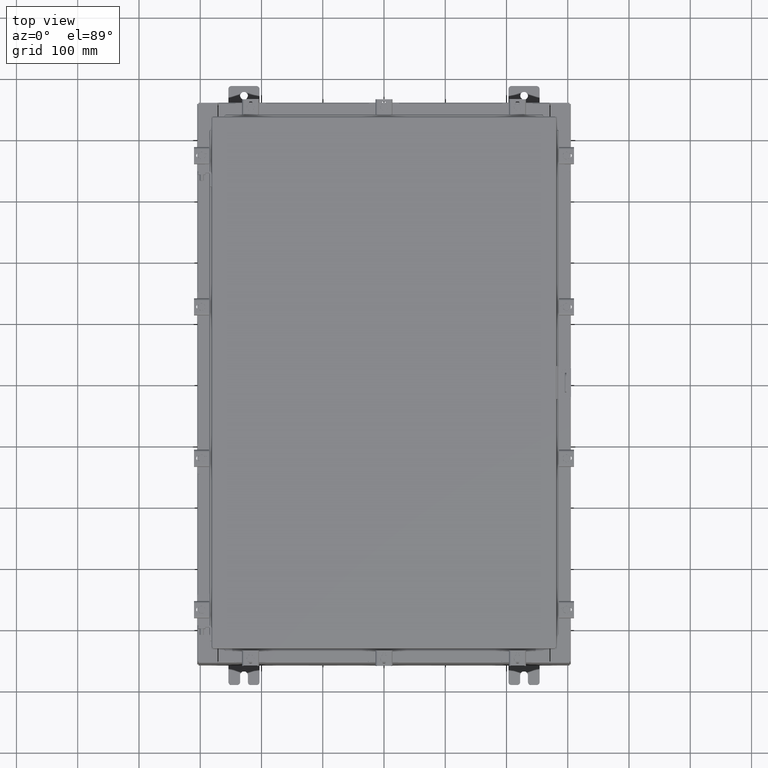
[diagram: clean part render]
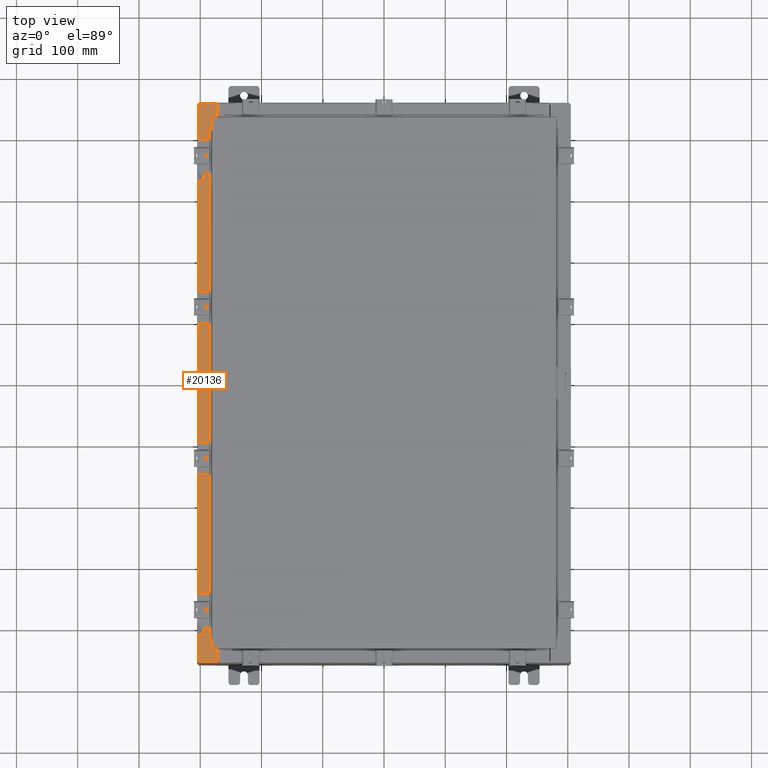
[diagram: same view with one face highlighted and labeled with its STEP entity id]
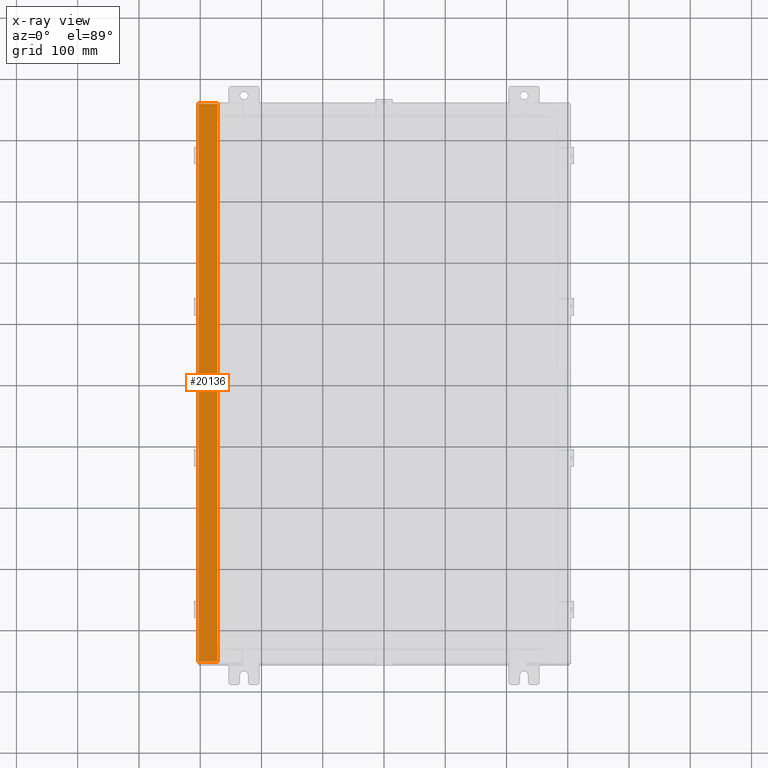
[diagram: x-ray of the same camera — body ghosted, the highlighted face saturated]
A machine part, top view. The second image highlights one B-rep face of the part: STEP entity #20136.
The next image is the same camera in x-ray: the body ghosted, the highlighted face saturated — about 0% of this face is hidden behind the body in this view.
In plain terms, the highlighted planar face has unit normal (0, 0, -1).
Its self-contained STEP definition (entity closure, byte-faithful):
#74 = EDGE_CURVE ( 'NONE', #7706, #15444, #13400, .T. ) ;
#233 = AXIS2_PLACEMENT_3D ( 'NONE', #6294, #18950, #8116 ) ;
#249 = VECTOR ( 'NONE', #12723, 39.37007874015748100 ) ;
#521 = EDGE_CURVE ( 'NONE', #19828, #7706, #11974, .T. ) ;
#874 = VECTOR ( 'NONE', #1730, 39.37007874015748100 ) ;
#908 = CARTESIAN_POINT ( 'NONE',  ( -10.69970000000003700, -16.63109999999998900, 9.925300000000007100 ) ) ;
#1245 = ORIENTED_EDGE ( 'NONE', *, *, #11201, .T. ) ;
#1417 = LINE ( 'NONE', #11437, #5676 ) ;
#1730 = DIRECTION ( 'NONE',  ( 1.000000000000000000, -4.340572780399910900E-014, 0.0000000000000000000 ) ) ;
#1740 = CARTESIAN_POINT ( 'NONE',  ( -10.69970000000003700, 17.92529999999999600, 9.925300000000007100 ) ) ;
#1841 = LINE ( 'NONE', #8664, #15724 ) ;
#2166 = ORIENTED_EDGE ( 'NONE', *, *, #9077, .F. ) ;
#2169 = EDGE_CURVE ( 'NONE', #3874, #5414, #6849, .T. ) ;
#2213 = ORIENTED_EDGE ( 'NONE', *, *, #521, .F. ) ;
#2250 = ORIENTED_EDGE ( 'NONE', *, *, #17126, .F. ) ;
#2340 = DIRECTION ( 'NONE',  ( -4.276128853718621600E-031, 1.000000000000000000, -3.050061104355376000E-045 ) ) ;
#3731 = CARTESIAN_POINT ( 'NONE',  ( -11.91230000000003600, -17.92530000000000400, 9.925299999999998200 ) ) ;
#3874 = VERTEX_POINT ( 'NONE', #15579 ) ;
#4492 = VERTEX_POINT ( 'NONE', #7373 ) ;
#4605 = VERTEX_POINT ( 'NONE', #7596 ) ;
#4689 = DIRECTION ( 'NONE',  ( 7.132762385546384700E-015, 0.0000000000000000000, -1.000000000000000000 ) ) ;
#4799 = CARTESIAN_POINT ( 'NONE',  ( -10.75005000000003700, -16.61242499999999100, 9.925300000000007100 ) ) ;
#4866 = ORIENTED_EDGE ( 'NONE', *, *, #2169, .F. ) ;
#5065 = ORIENTED_EDGE ( 'NONE', *, *, #13875, .T. ) ;
#5414 = VERTEX_POINT ( 'NONE', #19512 ) ;
#5672 = LINE ( 'NONE', #10824, #874 ) ;
#5676 = VECTOR ( 'NONE', #2340, 39.37007874015748100 ) ;
#6096 = AXIS2_PLACEMENT_3D ( 'NONE', #15536, #4689, #17345 ) ;
#6267 = EDGE_CURVE ( 'NONE', #15444, #15805, #5672, .T. ) ;
#6294 = CARTESIAN_POINT ( 'NONE',  ( -10.75005000000003700, 16.61242499999999800, 9.925300000000007100 ) ) ;
#6849 = CIRCLE ( 'NONE', #233, 0.01867499999999949400 ) ;
#7121 = DIRECTION ( 'NONE',  ( 1.000000000000000000, -8.758115402030108600E-047, 7.132762385546384700E-015 ) ) ;
#7327 = EDGE_CURVE ( 'NONE', #5414, #21049, #14106, .T. ) ;
#7373 = CARTESIAN_POINT ( 'NONE',  ( -11.91230000000003600, 17.92529999999999600, 9.925299999999998200 ) ) ;
#7596 = CARTESIAN_POINT ( 'NONE',  ( -10.69970000000003700, 16.63110000000000000, 9.925300000000007100 ) ) ;
#7706 = VERTEX_POINT ( 'NONE', #18865 ) ;
#8116 = DIRECTION ( 'NONE',  ( 1.000000000000000000, 0.0000000000000000000, 0.0000000000000000000 ) ) ;
#8333 = LINE ( 'NONE', #13423, #22186 ) ;
#8416 = VECTOR ( 'NONE', #8458, 39.37007874015748100 ) ;
#8458 = DIRECTION ( 'NONE',  ( -0.0000000000000000000, 1.000000000000000000, -0.0000000000000000000 ) ) ;
#8497 = CARTESIAN_POINT ( 'NONE',  ( -10.71270000000003900, 16.59374999999999600, 9.925300000000007100 ) ) ;
#8664 = CARTESIAN_POINT ( 'NONE',  ( -10.69970000000003700, 16.63110000000000000, 9.925300000000007100 ) ) ;
#9077 = EDGE_CURVE ( 'NONE', #19896, #4492, #22826, .T. ) ;
#9487 = ORIENTED_EDGE ( 'NONE', *, *, #74, .F. ) ;
#10163 = EDGE_CURVE ( 'NONE', #19896, #10785, #21647, .T. ) ;
#10473 = DIRECTION ( 'NONE',  ( -1.000000000000000000, -4.340572780399910900E-014, 0.0000000000000000000 ) ) ;
#10785 = VERTEX_POINT ( 'NONE', #19590 ) ;
#10824 = CARTESIAN_POINT ( 'NONE',  ( -10.75005000000003700, -16.63109999999998900, 9.925300000000007100 ) ) ;
#10952 = DIRECTION ( 'NONE',  ( -1.000000000000000000, -1.087045829762336900E-031, -7.132762385546384700E-015 ) ) ;
#10965 = DIRECTION ( 'NONE',  ( 1.000000000000000000, 0.0000000000000000000, 0.0000000000000000000 ) ) ;
#11201 = EDGE_CURVE ( 'NONE', #4605, #16146, #8333, .T. ) ;
#11413 = EDGE_CURVE ( 'NONE', #21049, #19828, #23005, .T. ) ;
#11437 = CARTESIAN_POINT ( 'NONE',  ( -10.69970000000003700, -4.575329589613298800E-030, 9.925300000000007100 ) ) ;
#11721 = VECTOR ( 'NONE', #10952, 39.37007874015748100 ) ;
#11974 = LINE ( 'NONE', #17729, #20986 ) ;
#12068 = VECTOR ( 'NONE', #7121, 39.37007874015748100 ) ;
#12723 = DIRECTION ( 'NONE',  ( 1.000000000000000000, 0.0000000000000000000, 0.0000000000000000000 ) ) ;
#13400 = CIRCLE ( 'NONE', #15967, 0.01867499999999949400 ) ;
#13423 = CARTESIAN_POINT ( 'NONE',  ( -10.69970000000003700, -4.575329589613298800E-030, 9.925300000000007100 ) ) ;
#13688 = EDGE_LOOP ( 'NONE', ( #2250, #1245, #22781, #2166, #18184, #5065, #21071, #9487, #2213, #16443, #18733, #4866 ) ) ;
#13712 = PLANE ( 'NONE',  #6096 ) ;
#13875 = EDGE_CURVE ( 'NONE', #10785, #15805, #1417, .T. ) ;
#13956 = DIRECTION ( 'NONE',  ( -0.0000000000000000000, -1.000000000000000000, -0.0000000000000000000 ) ) ;
#14106 = LINE ( 'NONE', #18096, #249 ) ;
#14351 = CARTESIAN_POINT ( 'NONE',  ( -10.75005000000003700, -16.63109999999998900, 9.925300000000007100 ) ) ;
#14605 = CARTESIAN_POINT ( 'NONE',  ( -7.105562016127570400E-014, 17.92529999999999600, 9.925300000000083500 ) ) ;
#15336 = FACE_OUTER_BOUND ( 'NONE', #13688, .T. ) ;
#15444 = VERTEX_POINT ( 'NONE', #14351 ) ;
#15536 = CARTESIAN_POINT ( 'NONE',  ( -7.105562016127570400E-014, 0.0000000000000000000, 9.925300000000083500 ) ) ;
#15579 = CARTESIAN_POINT ( 'NONE',  ( -10.75005000000003700, 16.63110000000000000, 9.925300000000007100 ) ) ;
#15724 = VECTOR ( 'NONE', #10473, 39.37007874015748100 ) ;
#15805 = VERTEX_POINT ( 'NONE', #908 ) ;
#15967 = AXIS2_PLACEMENT_3D ( 'NONE', #4799, #17226, #10965 ) ;
#16092 = CARTESIAN_POINT ( 'NONE',  ( -10.71270000000003900, -16.59374999999998900, 9.925300000000007100 ) ) ;
#16146 = VERTEX_POINT ( 'NONE', #1740 ) ;
#16443 = ORIENTED_EDGE ( 'NONE', *, *, #11413, .F. ) ;
#17066 = DIRECTION ( 'NONE',  ( -4.276128853718621600E-031, 1.000000000000000000, -3.050061104355376000E-045 ) ) ;
#17126 = EDGE_CURVE ( 'NONE', #4605, #3874, #1841, .T. ) ;
#17226 = DIRECTION ( 'NONE',  ( -7.132762385546384700E-015, -0.0000000000000000000, 1.000000000000000000 ) ) ;
#17345 = DIRECTION ( 'NONE',  ( -1.000000000000000000, 0.0000000000000000000, -7.132762385546384700E-015 ) ) ;
#17729 = CARTESIAN_POINT ( 'NONE',  ( -10.71270000000003900, -16.59374999999998900, 9.925300000000007100 ) ) ;
#17974 = CARTESIAN_POINT ( 'NONE',  ( -7.105562016127570400E-014, -17.92530000000000400, 9.925300000000083500 ) ) ;
#18096 = CARTESIAN_POINT ( 'NONE',  ( -10.75005000000003700, 16.59375000000000000, 9.925300000000007100 ) ) ;
#18184 = ORIENTED_EDGE ( 'NONE', *, *, #10163, .T. ) ;
#18241 = VECTOR ( 'NONE', #13956, 39.37007874015748100 ) ;
#18733 = ORIENTED_EDGE ( 'NONE', *, *, #7327, .F. ) ;
#18865 = CARTESIAN_POINT ( 'NONE',  ( -10.75005000000003700, -16.59374999999998900, 9.925300000000007100 ) ) ;
#18950 = DIRECTION ( 'NONE',  ( -7.132762385546384700E-015, -0.0000000000000000000, 1.000000000000000000 ) ) ;
#19512 = CARTESIAN_POINT ( 'NONE',  ( -10.75005000000003700, 16.59375000000000000, 9.925300000000007100 ) ) ;
#19590 = CARTESIAN_POINT ( 'NONE',  ( -10.69970000000003700, -17.92530000000000400, 9.925300000000007100 ) ) ;
#19828 = VERTEX_POINT ( 'NONE', #16092 ) ;
#19896 = VERTEX_POINT ( 'NONE', #3731 ) ;
#20136 = ADVANCED_FACE ( 'NONE', ( #15336 ), #13712, .F. ) ;
#20986 = VECTOR ( 'NONE', #21404, 39.37007874015748100 ) ;
#21049 = VERTEX_POINT ( 'NONE', #23349 ) ;
#21071 = ORIENTED_EDGE ( 'NONE', *, *, #6267, .F. ) ;
#21087 = CARTESIAN_POINT ( 'NONE',  ( -11.91230000000003600, 17.92529999999999600, 9.925299999999998200 ) ) ;
#21404 = DIRECTION ( 'NONE',  ( -1.000000000000000000, 0.0000000000000000000, 0.0000000000000000000 ) ) ;
#21647 = LINE ( 'NONE', #17974, #12068 ) ;
#21887 = LINE ( 'NONE', #14605, #11721 ) ;
#22186 = VECTOR ( 'NONE', #17066, 39.37007874015748100 ) ;
#22778 = EDGE_CURVE ( 'NONE', #16146, #4492, #21887, .T. ) ;
#22781 = ORIENTED_EDGE ( 'NONE', *, *, #22778, .T. ) ;
#22826 = LINE ( 'NONE', #21087, #8416 ) ;
#23005 = LINE ( 'NONE', #8497, #18241 ) ;
#23349 = CARTESIAN_POINT ( 'NONE',  ( -10.71270000000003900, 16.59375000000000000, 9.925300000000007100 ) ) ;